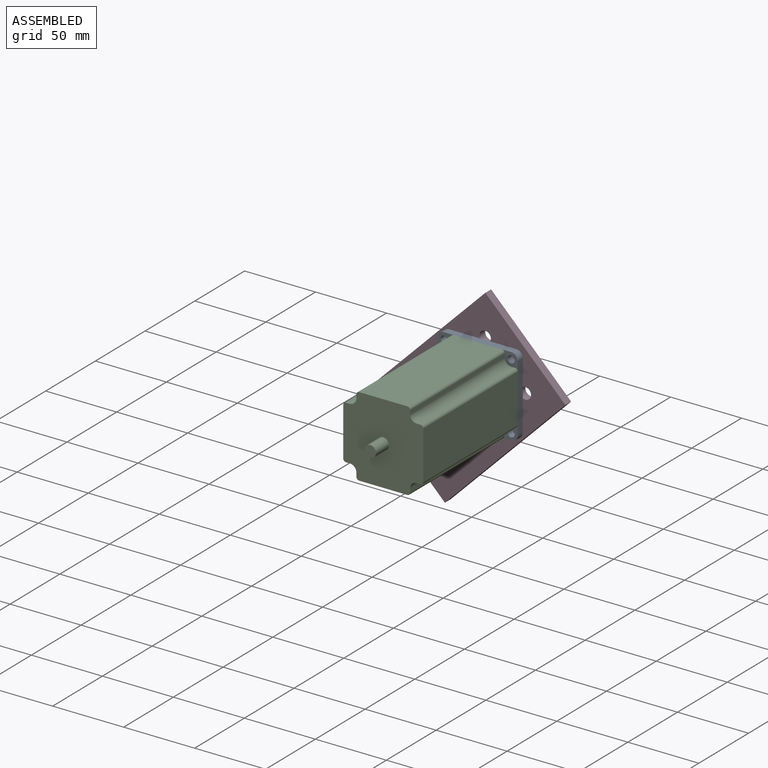
[diagram: assembled view]
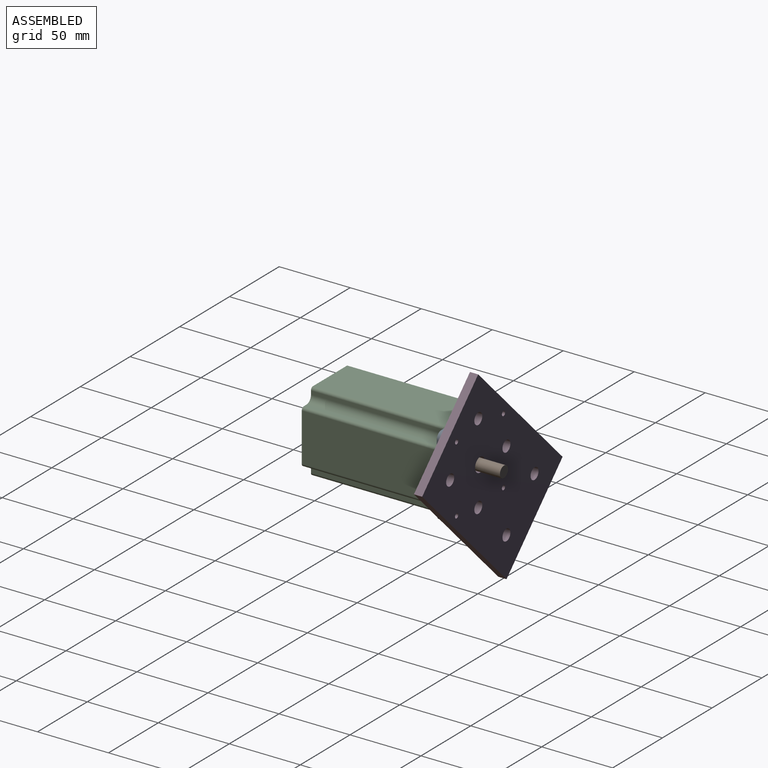
[diagram: assembled view, second angle]
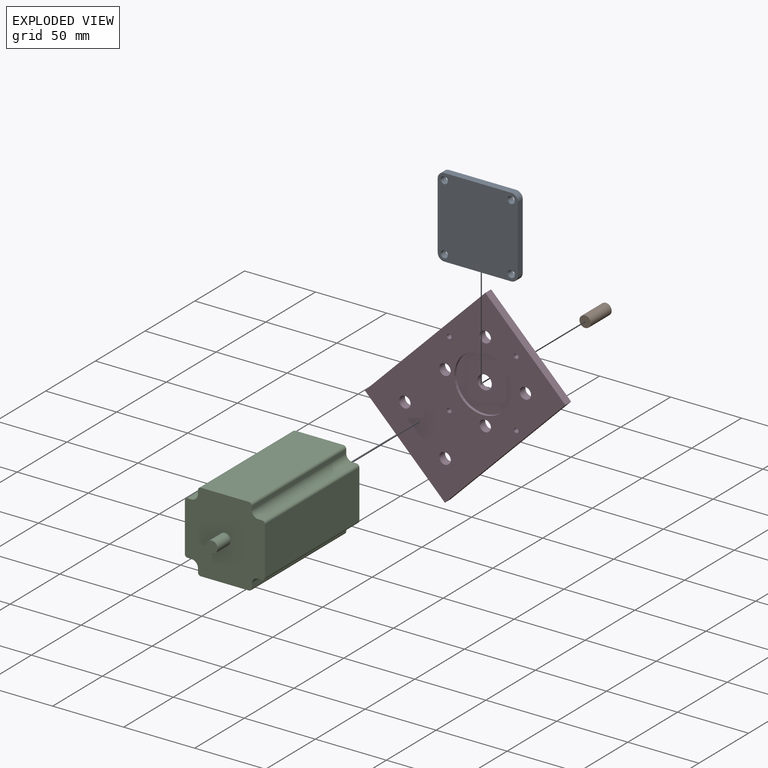
[diagram: exploded view]
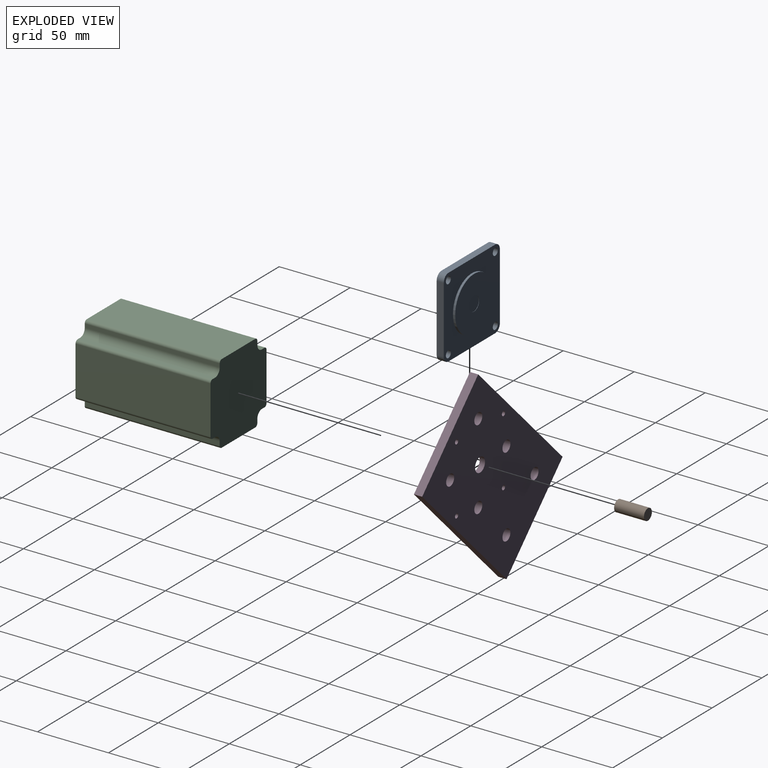
[diagram: exploded view, second angle]
ASSEMBLY  parts=4 mates=8
PART A: 18 faces, bbox 56.4x56.4x6.6 mm
  f0: plane 38x38mm, normal (0,0,1), area 1055.6mm2, adj f15,f16
  f1: plane 56.4x56.4mm, normal (0,0,1), area 1949.9mm2, adj f2,f3,f4,f5,f6,f7,f8,f9
  f2: cylinder r=4.63mm len=5mm, axis (0,0,1), area 36.4mm2, adj f1,f3,f9,f10
  f3: plane 47.14x5mm, normal (1,0,0), area 235.7mm2, adj f1,f2,f4,f10
  f4: cylinder r=4.63mm len=5mm, axis (0,0,1), area 36.4mm2, adj f1,f3,f5,f10
  f5: plane 47.14x5mm, normal (0,-1,0), area 235.7mm2, adj f1,f4,f6,f10
  f6: cylinder r=4.63mm len=5mm, axis (0,0,1), area 36.4mm2, adj f1,f5,f7,f10
  f7: plane 47.14x5mm, normal (-1,0,0), area 235.7mm2, adj f1,f6,f8,f10
  f8: cylinder r=4.63mm len=5mm, axis (0,0,1), area 36.4mm2, adj f1,f7,f9,f10
  f9: plane 47.14x5mm, normal (0,1,0), area 235.7mm2, adj f1,f2,f8,f10
  f10: plane 56.4x56.4mm, normal (0,0,-1), area 3084mm2, adj f2,f3,f4,f5,f6,f7,f8,f9
  f11: cylinder r=2.5mm len=5mm, axis (0,0,1), area 78.5mm2, adj f1,f10
  f12: cylinder r=2.5mm len=5mm, axis (0,0,1), area 78.5mm2, adj f1,f10
  f13: cylinder r=2.5mm len=5mm, axis (0,0,1), area 78.5mm2, adj f1,f10
  f14: cylinder r=2.5mm len=5mm, axis (0,0,1), area 78.5mm2, adj f1,f10
  f15: cylinder r=19mm len=38mm, axis (0,0,-1), area 191mm2, adj f0,f1
  f16: cylinder r=5mm len=10mm, axis (0,0,1), area 6.3mm2, adj f0,f17
  f17: plane 10x10mm, normal (0,0,1), area 78.5mm2, adj f16
PART B: 3 faces, bbox 8x8x21 mm
  f0: plane 8x8mm, normal (0,0,1), area 50.3mm2, adj f1
  f1: cylinder r=4mm len=21mm, axis (0,0,-1), area 527.8mm2, adj f0,f2
  f2: plane 8x8mm, normal (0,0,-1), area 50.3mm2, adj f1
PART C: 28 faces, bbox 56.4x56.4x108 mm
  f0: cylinder r=2mm len=95mm, axis (0,0,1), area 298.5mm2, adj f1,f23,f24,f25
  f1: plane 95x2.63mm, normal (0,-1,0), area 249.9mm2, adj f0,f2,f24,f25
  f2: cylinder r=4.63mm len=95mm, axis (0,0,1), area 690.9mm2, adj f1,f3,f24,f25
  f3: plane 95x2.63mm, normal (1,0,0), area 249.9mm2, adj f2,f4,f24,f25
  f4: cylinder r=2mm len=95mm, axis (0,0,1), area 298.5mm2, adj f3,f5,f24,f25
  f5: plane 95x33.88mm, normal (0,-1,0), area 3218.6mm2, adj f4,f6,f24,f25
  f6: cylinder r=2mm len=95mm, axis (0,0,1), area 298.5mm2, adj f5,f7,f24,f25
  f7: plane 95x2.63mm, normal (-1,0,0), area 249.9mm2, adj f6,f8,f24,f25
  f8: cylinder r=4.63mm len=95mm, axis (0,0,1), area 690.9mm2, adj f7,f9,f24,f25
  f9: plane 95x2.63mm, normal (0,-1,0), area 249.9mm2, adj f8,f10,f24,f25
  f10: cylinder r=2mm len=95mm, axis (0,0,1), area 298.5mm2, adj f9,f11,f24,f25
  f11: plane 95x33.88mm, normal (-1,0,0), area 3218.6mm2, adj f10,f12,f24,f25
  f12: cylinder r=2mm len=95mm, axis (0,0,1), area 298.5mm2, adj f11,f13,f24,f25
  f13: plane 95x2.63mm, normal (0,1,0), area 249.9mm2, adj f12,f14,f24,f25
  f14: cylinder r=4.63mm len=95mm, axis (0,0,1), area 690.9mm2, adj f13,f15,f24,f25
  f15: plane 95x2.63mm, normal (-1,0,0), area 249.9mm2, adj f14,f16,f24,f25
  f16: cylinder r=2mm len=95mm, axis (0,0,1), area 298.5mm2, adj f15,f17,f24,f25
  f17: plane 95x33.88mm, normal (0,1,0), area 3218.6mm2, adj f16,f18,f24,f25
  f18: cylinder r=2mm len=95mm, axis (0,0,1), area 298.5mm2, adj f17,f19,f24,f25
  f19: plane 95x2.63mm, normal (1,0,0), area 249.9mm2, adj f18,f20,f24,f25
  f20: cylinder r=4.63mm len=95mm, axis (0,0,1), area 690.9mm2, adj f19,f21,f24,f25
  f21: plane 95x2.63mm, normal (0,1,0), area 249.9mm2, adj f20,f22,f24,f25
  f22: cylinder r=2mm len=95mm, axis (0,0,1), area 298.5mm2, adj f21,f23,f24,f25
  f23: plane 95x33.88mm, normal (1,0,0), area 3218.6mm2, adj f0,f22,f24,f25
  f24: plane 56.4x56.4mm, normal (0,0,1), area 2849.5mm2, adj f0,f1,f2,f3,f4,f5,f6,f7
  f25: plane 56.4x56.4mm, normal (0,0,-1), area 2799.2mm2, adj f0,f1,f2,f3,f4,f5,f6,f7
  f26: cylinder r=4mm len=13mm, axis (0,0,1), area 326.7mm2, adj f25,f27
  f27: plane 8x8mm, normal (0,0,-1), area 50.3mm2, adj f26
PART D: 19 faces, bbox 79.7x5.8x120 mm
  f0: cylinder r=5mm len=10mm, axis (0,1,0), area 119.4mm2, adj f16,f18
  f1: plane 79.7x5.8mm, normal (0,0,1), area 462.3mm2, adj f2,f14,f15,f16
  f2: plane 120x5.8mm, normal (-1,0,0), area 696mm2, adj f1,f3,f15,f16
  f3: plane 79.7x5.8mm, normal (0,0,-1), area 462.3mm2, adj f2,f14,f15,f16
  f4: cylinder r=4mm len=8mm, axis (0,1,0), area 145.8mm2, adj f15,f16
  f5: cylinder r=4mm len=8mm, axis (0,1,0), area 145.8mm2, adj f15,f16
  f6: cylinder r=1.59mm len=5.8mm, axis (0,1,0), area 57.9mm2, adj f15,f16
  f7: cylinder r=1.59mm len=5.8mm, axis (0,1,0), area 57.9mm2, adj f15,f16
  f8: cylinder r=1.59mm len=5.8mm, axis (0,1,0), area 57.9mm2, adj f15,f16
  f9: cylinder r=1.59mm len=5.8mm, axis (0,1,0), area 57.9mm2, adj f15,f16
  f10: cylinder r=4mm len=8mm, axis (0,1,0), area 145.8mm2, adj f15,f16
  f11: cylinder r=4mm len=8mm, axis (0,1,0), area 145.8mm2, adj f15,f16
  f12: cylinder r=4mm len=8mm, axis (0,1,0), area 145.8mm2, adj f15,f16
  f13: cylinder r=4mm len=8mm, axis (0,1,0), area 145.8mm2, adj f15,f16
  f14: plane 120x5.8mm, normal (1,0,0), area 696mm2, adj f1,f3,f15,f16
  f15: plane 120x79.7mm, normal (0,-1,0), area 7974.1mm2, adj f1,f2,f3,f4,f5,f6,f7,f8
  f16: plane 120x79.7mm, normal (0,1,0), area 9152.2mm2, adj f0,f1,f2,f3,f4,f5,f6,f7
  f17: cylinder r=20mm len=40mm, axis (0,-1,0), area 251.3mm2, adj f15,f18
  f18: plane 40x40mm, normal (0,-1,0), area 1178.1mm2, adj f0,f17
PLACE A rot(axis=(-1,0,0),90deg) t=(-42.8,0.82,34.78)mm
PLACE B rot(axis=(-0.92,-0.27,-0.27),94.7deg) t=(-42.8,0.82,34.78)mm
PLACE C rot(axis=(-1,0,0),90deg) t=(-42.8,0.82,34.78)mm
PLACE D rot(axis=(0,1,0),45deg) t=(-55.19,6.62,22.39)mm
MATE planar A.f3 <-> C.f23  axis (1,0,0) through (-14.6,-1.68,34.78)mm
MATE cylindrical A.f4 <-> D.f9  axis (0,1,0) through (-19.23,-4.18,58.35)mm
MATE planar A.f16 <-> C.f26  axis (0,-1,0) through (-42.8,-4.18,34.78)mm
MATE cylindrical B.f1 <-> A.f15  axis (0,-1,0) through (-42.8,12.92,34.78)mm
MATE cylindrical D.f8 <-> A.f8  axis (0,-1,0) through (-66.37,0.82,11.21)mm
MATE planar A.f15 <-> B.f1  axis (0,1,0) through (-42.8,2.42,34.78)mm
MATE planar A.f1 <-> D.f15  axis (0,1,0) through (-42.8,0.82,6.58)mm
MATE planar C.f5 <-> A.f5  axis (0,0,1) through (-42.8,-4.18,62.98)mm
